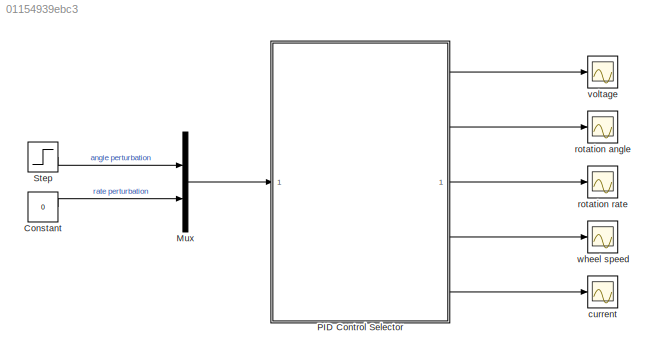
MODEL slx_01154939ebc3
KIND model
CONFIG AbsTol = auto
CONFIG EnableMultiTasking = off
CONFIG FixedStep = auto
CONFIG MaxStep = auto
CONFIG MinStep = auto
CONFIG RelTol = 1e-3
CONFIG SampleTimeConstraint = Unconstrained
CONFIG SolverName = VariableStepAuto
CONFIG StartTime = 0.0
CONFIG StopTime = 10.0
BLOCK [Constant] Constant
  Value = 0
BLOCK [Mux] Mux
  DisplayOption = bar
  Inputs = 2
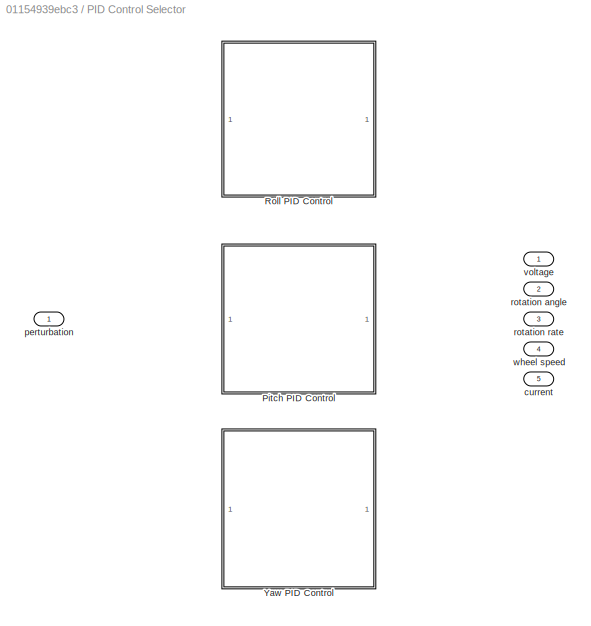
BLOCK [SubSystem] PID Control Selector
  Variant = on
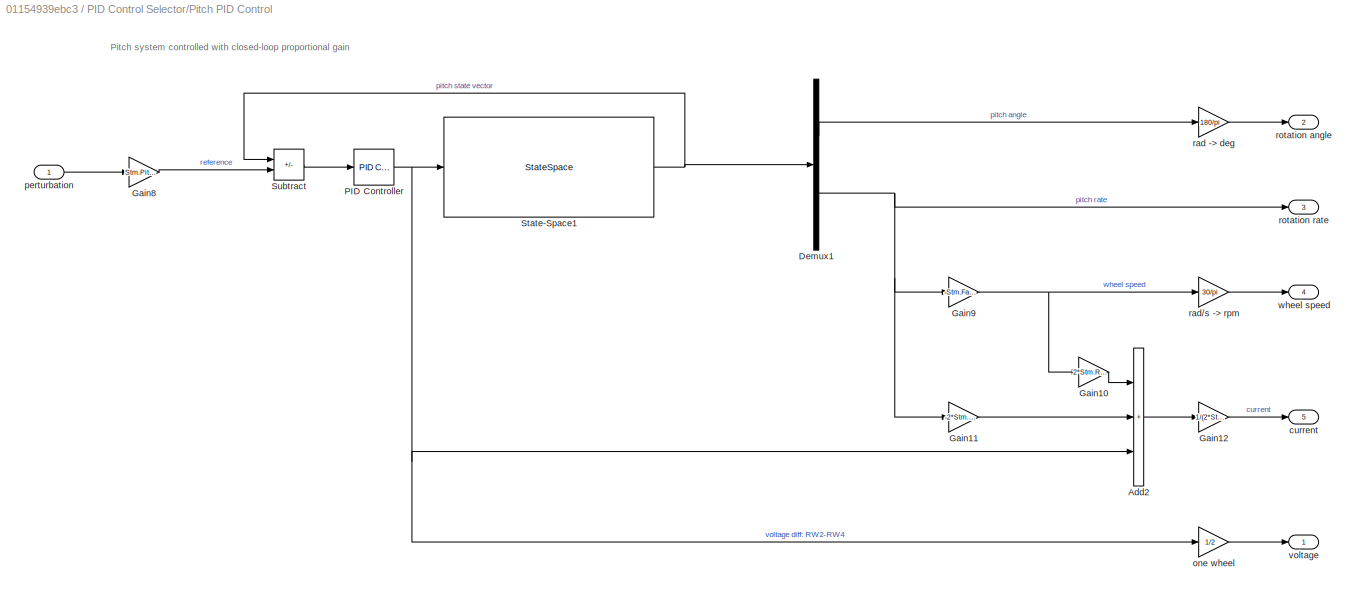
BLOCK [SubSystem] PID Control Selector/Pitch PID Control
  VariantControl = strcmp(RunArg.selsim, 'pitch')
BLOCK [Sum] PID Control Selector/Pitch PID Control/Add2
  IconShape = rectangular
  Inputs = +++
BLOCK [Demux] PID Control Selector/Pitch PID Control/Demux1
  Outputs = 2
BLOCK [Gain] PID Control Selector/Pitch PID Control/Gain10
  Gain = 2*Stm.RW.torqueCst
BLOCK [Gain] PID Control Selector/Pitch PID Control/Gain11
  Gain = -2*Stm.RW.torqueCst*sin(Stm.RW.beta)
BLOCK [Gain] PID Control Selector/Pitch PID Control/Gain12
  Gain = 1/(2*Stm.RW.elecR)
BLOCK [Gain] PID Control Selector/Pitch PID Control/Gain8
  Gain = Stm.Pitch.angle
BLOCK [Gain] PID Control Selector/Pitch PID Control/Gain9
  Gain = -Stm.Falcon.Iyy/(2*Reqr.RW.I*sin(Stm.RW.beta))
BLOCK [Reference] PID Control Selector/Pitch PID Control/PID Controller  REF=slpidlib/PID Controller
  LibrarySourceBlock = simulink/Continuous/PID Controller
  SourceBlock = slpidlib/PID Controller
  SourceType = PID 1dof
BLOCK [StateSpace] PID Control Selector/Pitch PID Control/State-Space1
  A = SS.Pitch.A
  B = SS.Pitch.B
  C = SS.Pitch.C
  D = SS.Pitch.D
  InitialCondition = 0
BLOCK [Sum] PID Control Selector/Pitch PID Control/Subtract
  IconShape = rectangular
  Inputs = -+
BLOCK [Outport] PID Control Selector/Pitch PID Control/current
  Port = 5
BLOCK [Gain] PID Control Selector/Pitch PID Control/one wheel
  Gain = 1/2
BLOCK [Inport] PID Control Selector/Pitch PID Control/perturbation
BLOCK [Gain] PID Control Selector/Pitch PID Control/rad -> deg
  Gain = 180/pi
BLOCK [Gain] PID Control Selector/Pitch PID Control/rad//s -> rpm
  Gain = 30/pi
BLOCK [Outport] PID Control Selector/Pitch PID Control/rotation angle
  Port = 2
BLOCK [Outport] PID Control Selector/Pitch PID Control/rotation rate
  Port = 3
BLOCK [Outport] PID Control Selector/Pitch PID Control/voltage
BLOCK [Outport] PID Control Selector/Pitch PID Control/wheel speed
  Port = 4
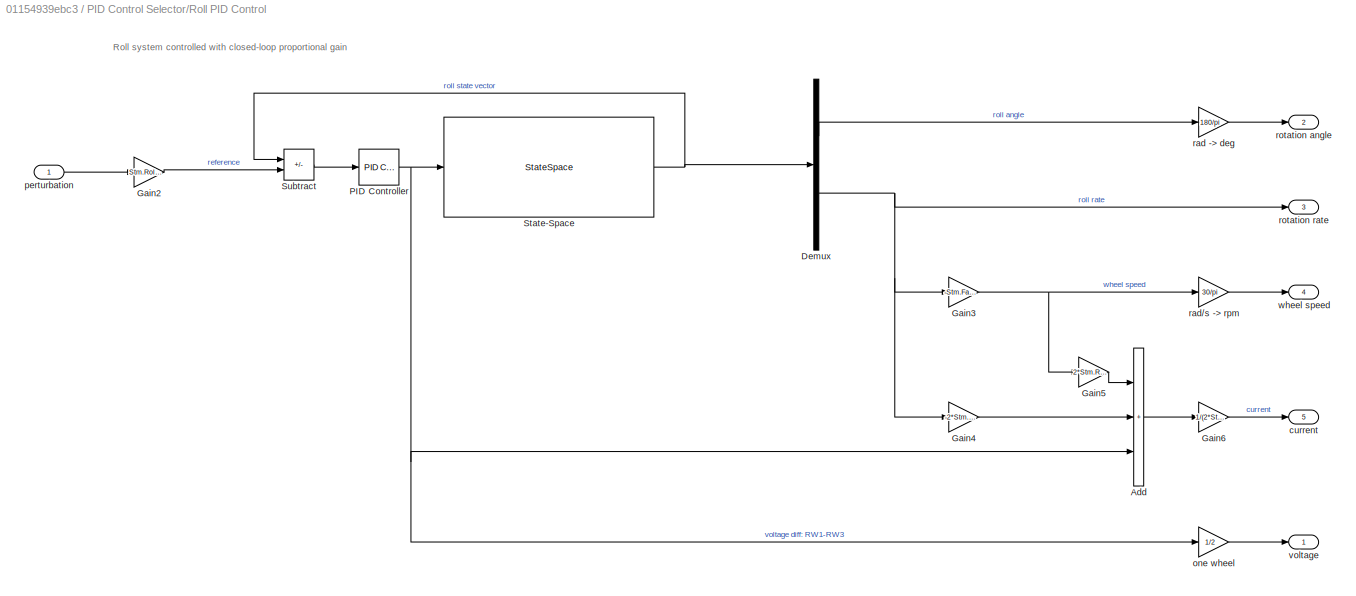
BLOCK [SubSystem] PID Control Selector/Roll PID Control
  VariantControl = strcmp(RunArg.selsim, 'roll')
BLOCK [Sum] PID Control Selector/Roll PID Control/Add
  IconShape = rectangular
  Inputs = +++
BLOCK [Demux] PID Control Selector/Roll PID Control/Demux
  Outputs = 2
BLOCK [Gain] PID Control Selector/Roll PID Control/Gain2
  Gain = Stm.Roll.angle
BLOCK [Gain] PID Control Selector/Roll PID Control/Gain3
  Gain = -Stm.Falcon.Ixx/(2*Reqr.RW.I*sin(Stm.RW.beta))
BLOCK [Gain] PID Control Selector/Roll PID Control/Gain4
  Gain = -2*Stm.RW.torqueCst*sin(Stm.RW.beta)
BLOCK [Gain] PID Control Selector/Roll PID Control/Gain5
  Gain = 2*Stm.RW.torqueCst
BLOCK [Gain] PID Control Selector/Roll PID Control/Gain6
  Gain = 1/(2*Stm.RW.elecR)
BLOCK [Reference] PID Control Selector/Roll PID Control/PID Controller  REF=slpidlib/PID Controller
  LibrarySourceBlock = simulink/Continuous/PID Controller
  SourceBlock = slpidlib/PID Controller
  SourceType = PID 1dof
BLOCK [StateSpace] PID Control Selector/Roll PID Control/State-Space
  A = SS.Roll.A
  B = SS.Roll.B
  C = SS.Roll.C
  D = SS.Roll.D
  InitialCondition = 0
BLOCK [Sum] PID Control Selector/Roll PID Control/Subtract
  IconShape = rectangular
  Inputs = -+
BLOCK [Outport] PID Control Selector/Roll PID Control/current
  Port = 5
BLOCK [Gain] PID Control Selector/Roll PID Control/one wheel
  Gain = 1/2
BLOCK [Inport] PID Control Selector/Roll PID Control/perturbation
BLOCK [Gain] PID Control Selector/Roll PID Control/rad -> deg
  Gain = 180/pi
BLOCK [Gain] PID Control Selector/Roll PID Control/rad//s -> rpm
  Gain = 30/pi
BLOCK [Outport] PID Control Selector/Roll PID Control/rotation angle
  Port = 2
BLOCK [Outport] PID Control Selector/Roll PID Control/rotation rate
  Port = 3
BLOCK [Outport] PID Control Selector/Roll PID Control/voltage
BLOCK [Outport] PID Control Selector/Roll PID Control/wheel speed
  Port = 4
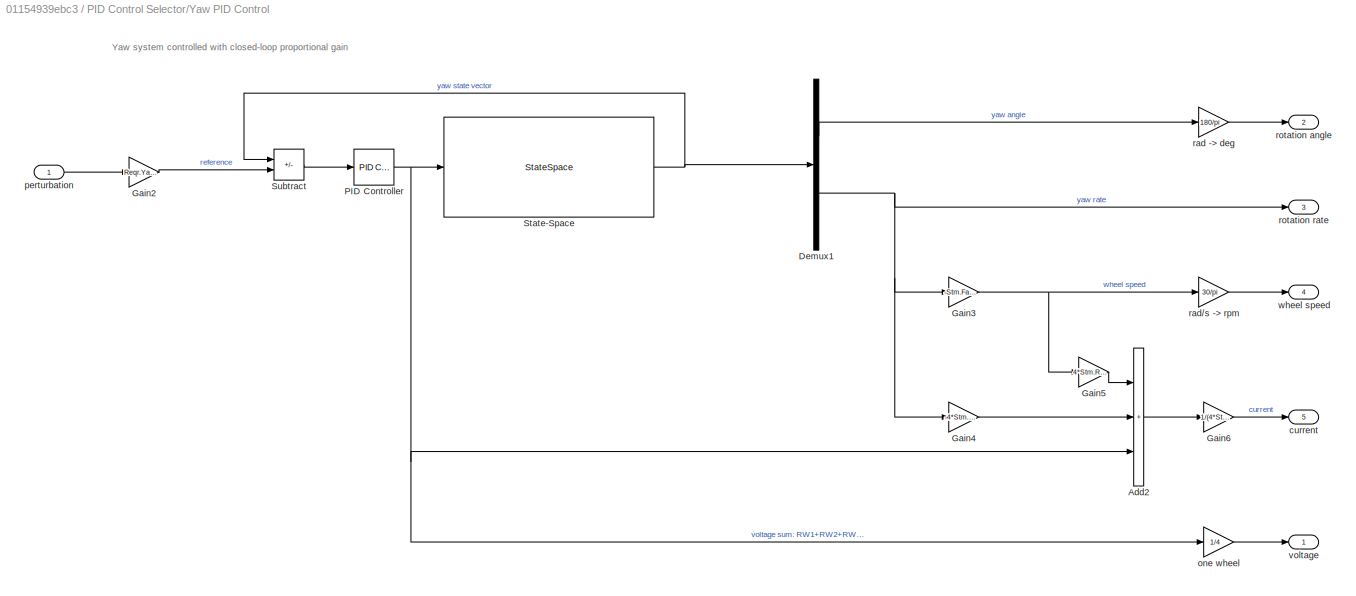
BLOCK [SubSystem] PID Control Selector/Yaw PID Control
  VariantControl = strcmp(RunArg.selsim, 'yaw')
BLOCK [Sum] PID Control Selector/Yaw PID Control/Add2
  IconShape = rectangular
  Inputs = +++
BLOCK [Demux] PID Control Selector/Yaw PID Control/Demux1
  Outputs = 2
BLOCK [Gain] PID Control Selector/Yaw PID Control/Gain2
  Gain = Reqr.YawEvo.angle(Stm.Yaw.laserTime*2)
BLOCK [Gain] PID Control Selector/Yaw PID Control/Gain3
  Gain = -Stm.Falcon.Izz/(4*Reqr.RW.I*cos(Stm.RW.beta))
BLOCK [Gain] PID Control Selector/Yaw PID Control/Gain4
  Gain = -4*Stm.RW.torqueCst*cos(Stm.RW.beta)
BLOCK [Gain] PID Control Selector/Yaw PID Control/Gain5
  Gain = 4*Stm.RW.torqueCst
BLOCK [Gain] PID Control Selector/Yaw PID Control/Gain6
  Gain = 1/(4*Stm.RW.elecR)
BLOCK [Reference] PID Control Selector/Yaw PID Control/PID Controller  REF=slpidlib/PID Controller
  LibrarySourceBlock = simulink/Continuous/PID Controller
  SourceBlock = slpidlib/PID Controller
  SourceType = PID 1dof
BLOCK [StateSpace] PID Control Selector/Yaw PID Control/State-Space
  A = SS.Yaw.A
  B = SS.Yaw.B
  C = SS.Yaw.C
  D = SS.Yaw.D
  InitialCondition = 0
BLOCK [Sum] PID Control Selector/Yaw PID Control/Subtract
  IconShape = rectangular
  Inputs = -+
BLOCK [Outport] PID Control Selector/Yaw PID Control/current
  Port = 5
BLOCK [Gain] PID Control Selector/Yaw PID Control/one wheel
  Gain = 1/4
BLOCK [Inport] PID Control Selector/Yaw PID Control/perturbation
BLOCK [Gain] PID Control Selector/Yaw PID Control/rad -> deg
  Gain = 180/pi
BLOCK [Gain] PID Control Selector/Yaw PID Control/rad//s -> rpm
  Gain = 30/pi
BLOCK [Outport] PID Control Selector/Yaw PID Control/rotation angle
  Port = 2
BLOCK [Outport] PID Control Selector/Yaw PID Control/rotation rate
  Port = 3
BLOCK [Outport] PID Control Selector/Yaw PID Control/voltage
BLOCK [Outport] PID Control Selector/Yaw PID Control/wheel speed
  Port = 4
BLOCK [Outport] PID Control Selector/current
  NameLocation = right
  Port = 5
BLOCK [Inport] PID Control Selector/perturbation
  NameLocation = left
BLOCK [Outport] PID Control Selector/rotation angle
  NameLocation = right
  Port = 2
BLOCK [Outport] PID Control Selector/rotation rate
  NameLocation = right
  Port = 3
BLOCK [Outport] PID Control Selector/voltage
  NameLocation = right
BLOCK [Outport] PID Control Selector/wheel speed
  NameLocation = right
  Port = 4
BLOCK [Step] Step
  SampleTime = 0
BLOCK [Scope] current
  Floating = off
  NameLocation = right
  NumInputPorts = 1
  ScopeSpecificationString = Simulink.scopes.TimeScopeBlockCfg('CurrentConfiguration', extmgr.ConfigurationSet(extmgr.Configuration('Core','General UI',true),extmgr.Configuration('Core','Source UI',true),extmgr.Configuration('Sources','WiredSimulink',true,'DataLoggingVariableName','ScopeData1'),extmgr.Configuration('Visuals','Time Domain',true,'SerializedDisplays',{struct('MinYLimReal','-497199.55038','MaxYLimReal','1800573.6...<+1458ch>
BLOCK [Scope] rotation angle
  Floating = off
  NameLocation = right
  NumInputPorts = 1
  ScopeSpecificationString = Simulink.scopes.TimeScopeBlockCfg('CurrentConfiguration', extmgr.ConfigurationSet(extmgr.Configuration('Core','General UI',true),extmgr.Configuration('Core','Source UI',true),extmgr.Configuration('Sources','WiredSimulink',true,'DataLoggingVariableName','ScopeData2'),extmgr.Configuration('Visuals','Time Domain',true,'SerializedDisplays',{struct('MinYLimReal','-11.40913','MaxYLimReal','102.68214','Y...<+1423ch>
BLOCK [Scope] rotation rate
  Floating = off
  NameLocation = right
  NumInputPorts = 1
  ScopeSpecificationString = Simulink.scopes.TimeScopeBlockCfg('CurrentConfiguration', extmgr.ConfigurationSet(extmgr.Configuration('Core','General UI',true),extmgr.Configuration('Core','Source UI',true),extmgr.Configuration('Sources','WiredSimulink',true,'DataLoggingVariableName','ScopeData3'),extmgr.Configuration('Visuals','Time Domain',true,'SerializedDisplays',{struct('MinYLimReal','-0.07158','MaxYLimReal','0.57237','YLab...<+1418ch>
BLOCK [Scope] voltage
  Floating = off
  NameLocation = right
  NumInputPorts = 1
  ScopeSpecificationString = Simulink.scopes.TimeScopeBlockCfg('CurrentConfiguration', extmgr.ConfigurationSet(extmgr.Configuration('Core','General UI',true),extmgr.Configuration('Core','Source UI',true),extmgr.Configuration('Sources','WiredSimulink',true,'DataLoggingVariableName','ScopeData4'),extmgr.Configuration('Visuals','Time Domain',true,'SerializedDisplays',{struct('MinYLimReal','-24859287.96237','MaxYLimReal','9002860...<+1465ch>
BLOCK [Scope] wheel speed
  Floating = off
  NameLocation = right
  NumInputPorts = 1
  ScopeSpecificationString = Simulink.scopes.TimeScopeBlockCfg('CurrentConfiguration', extmgr.ConfigurationSet(extmgr.Configuration('Core','General UI',true),extmgr.Configuration('Core','Source UI',true),extmgr.Configuration('Sources','WiredSimulink',true),extmgr.Configuration('Visuals','Time Domain',true,'SerializedDisplays',{struct('MinYLimReal','-9270.94195','MaxYLimReal','1159.35641','YLabelReal','','MinYLimMag','  0.0000...<+1364ch>
ANNOTATION PID Control Selector/Pitch PID Control: Pitch system controlled with closed-loop proportional gain
ANNOTATION PID Control Selector/Roll PID Control: Roll system controlled with closed-loop proportional gain
ANNOTATION PID Control Selector/Yaw PID Control: Yaw system controlled with closed-loop proportional gain
LINE Constant:1 -> Mux:2
LINE Mux:1 -> PID Control Selector:1
LINE PID Control Selector/Pitch PID Control/Add2:1 -> PID Control Selector/Pitch PID Control/Gain12:1
LINE PID Control Selector/Pitch PID Control/Demux1:1 -> PID Control Selector/Pitch PID Control/rad -> deg:1
NET PID Control Selector/Pitch PID Control/Demux1:2 -> PID Control Selector/Pitch PID Control/Gain11:1, PID Control Selector/Pitch PID Control/Gain9:1, PID Control Selector/Pitch PID Control/rotation rate:1
LINE PID Control Selector/Pitch PID Control/Gain10:1 -> PID Control Selector/Pitch PID Control/Add2:1
LINE PID Control Selector/Pitch PID Control/Gain11:1 -> PID Control Selector/Pitch PID Control/Add2:2
LINE PID Control Selector/Pitch PID Control/Gain12:1 -> PID Control Selector/Pitch PID Control/current:1
LINE PID Control Selector/Pitch PID Control/Gain8:1 -> PID Control Selector/Pitch PID Control/Subtract:2
NET PID Control Selector/Pitch PID Control/Gain9:1 -> PID Control Selector/Pitch PID Control/Gain10:1, PID Control Selector/Pitch PID Control/rad//s -> rpm:1
NET PID Control Selector/Pitch PID Control/PID Controller:1 -> PID Control Selector/Pitch PID Control/Add2:3, PID Control Selector/Pitch PID Control/State-Space1:1, PID Control Selector/Pitch PID Control/one wheel:1
NET PID Control Selector/Pitch PID Control/State-Space1:1 -> PID Control Selector/Pitch PID Control/Demux1:1, PID Control Selector/Pitch PID Control/Subtract:1
LINE PID Control Selector/Pitch PID Control/Subtract:1 -> PID Control Selector/Pitch PID Control/PID Controller:1
LINE PID Control Selector/Pitch PID Control/one wheel:1 -> PID Control Selector/Pitch PID Control/voltage:1
LINE PID Control Selector/Pitch PID Control/perturbation:1 -> PID Control Selector/Pitch PID Control/Gain8:1
LINE PID Control Selector/Pitch PID Control/rad -> deg:1 -> PID Control Selector/Pitch PID Control/rotation angle:1
LINE PID Control Selector/Pitch PID Control/rad//s -> rpm:1 -> PID Control Selector/Pitch PID Control/wheel speed:1
LINE PID Control Selector/Roll PID Control/Add:1 -> PID Control Selector/Roll PID Control/Gain6:1
LINE PID Control Selector/Roll PID Control/Demux:1 -> PID Control Selector/Roll PID Control/rad -> deg:1
NET PID Control Selector/Roll PID Control/Demux:2 -> PID Control Selector/Roll PID Control/Gain3:1, PID Control Selector/Roll PID Control/Gain4:1, PID Control Selector/Roll PID Control/rotation rate:1
LINE PID Control Selector/Roll PID Control/Gain2:1 -> PID Control Selector/Roll PID Control/Subtract:2
NET PID Control Selector/Roll PID Control/Gain3:1 -> PID Control Selector/Roll PID Control/Gain5:1, PID Control Selector/Roll PID Control/rad//s -> rpm:1
LINE PID Control Selector/Roll PID Control/Gain4:1 -> PID Control Selector/Roll PID Control/Add:2
LINE PID Control Selector/Roll PID Control/Gain5:1 -> PID Control Selector/Roll PID Control/Add:1
LINE PID Control Selector/Roll PID Control/Gain6:1 -> PID Control Selector/Roll PID Control/current:1
NET PID Control Selector/Roll PID Control/PID Controller:1 -> PID Control Selector/Roll PID Control/Add:3, PID Control Selector/Roll PID Control/State-Space:1, PID Control Selector/Roll PID Control/one wheel:1
NET PID Control Selector/Roll PID Control/State-Space:1 -> PID Control Selector/Roll PID Control/Demux:1, PID Control Selector/Roll PID Control/Subtract:1
LINE PID Control Selector/Roll PID Control/Subtract:1 -> PID Control Selector/Roll PID Control/PID Controller:1
LINE PID Control Selector/Roll PID Control/one wheel:1 -> PID Control Selector/Roll PID Control/voltage:1
LINE PID Control Selector/Roll PID Control/perturbation:1 -> PID Control Selector/Roll PID Control/Gain2:1
LINE PID Control Selector/Roll PID Control/rad -> deg:1 -> PID Control Selector/Roll PID Control/rotation angle:1
LINE PID Control Selector/Roll PID Control/rad//s -> rpm:1 -> PID Control Selector/Roll PID Control/wheel speed:1
LINE PID Control Selector/Yaw PID Control/Add2:1 -> PID Control Selector/Yaw PID Control/Gain6:1
LINE PID Control Selector/Yaw PID Control/Demux1:1 -> PID Control Selector/Yaw PID Control/rad -> deg:1
NET PID Control Selector/Yaw PID Control/Demux1:2 -> PID Control Selector/Yaw PID Control/Gain3:1, PID Control Selector/Yaw PID Control/Gain4:1, PID Control Selector/Yaw PID Control/rotation rate:1
LINE PID Control Selector/Yaw PID Control/Gain2:1 -> PID Control Selector/Yaw PID Control/Subtract:2
NET PID Control Selector/Yaw PID Control/Gain3:1 -> PID Control Selector/Yaw PID Control/Gain5:1, PID Control Selector/Yaw PID Control/rad//s -> rpm:1
LINE PID Control Selector/Yaw PID Control/Gain4:1 -> PID Control Selector/Yaw PID Control/Add2:2
LINE PID Control Selector/Yaw PID Control/Gain5:1 -> PID Control Selector/Yaw PID Control/Add2:1
LINE PID Control Selector/Yaw PID Control/Gain6:1 -> PID Control Selector/Yaw PID Control/current:1
NET PID Control Selector/Yaw PID Control/PID Controller:1 -> PID Control Selector/Yaw PID Control/Add2:3, PID Control Selector/Yaw PID Control/State-Space:1, PID Control Selector/Yaw PID Control/one wheel:1
NET PID Control Selector/Yaw PID Control/State-Space:1 -> PID Control Selector/Yaw PID Control/Demux1:1, PID Control Selector/Yaw PID Control/Subtract:1
LINE PID Control Selector/Yaw PID Control/Subtract:1 -> PID Control Selector/Yaw PID Control/PID Controller:1
LINE PID Control Selector/Yaw PID Control/one wheel:1 -> PID Control Selector/Yaw PID Control/voltage:1
LINE PID Control Selector/Yaw PID Control/perturbation:1 -> PID Control Selector/Yaw PID Control/Gain2:1
LINE PID Control Selector/Yaw PID Control/rad -> deg:1 -> PID Control Selector/Yaw PID Control/rotation angle:1
LINE PID Control Selector/Yaw PID Control/rad//s -> rpm:1 -> PID Control Selector/Yaw PID Control/wheel speed:1
LINE PID Control Selector:1 -> voltage:1
LINE PID Control Selector:2 -> rotation angle:1
LINE PID Control Selector:3 -> rotation rate:1
LINE PID Control Selector:4 -> wheel speed:1
LINE PID Control Selector:5 -> current:1
LINE Step:1 -> Mux:1
note: NET lines group one-source signal fan-out (src -> all destinations, sorted); 1:1 wires keep LINE
